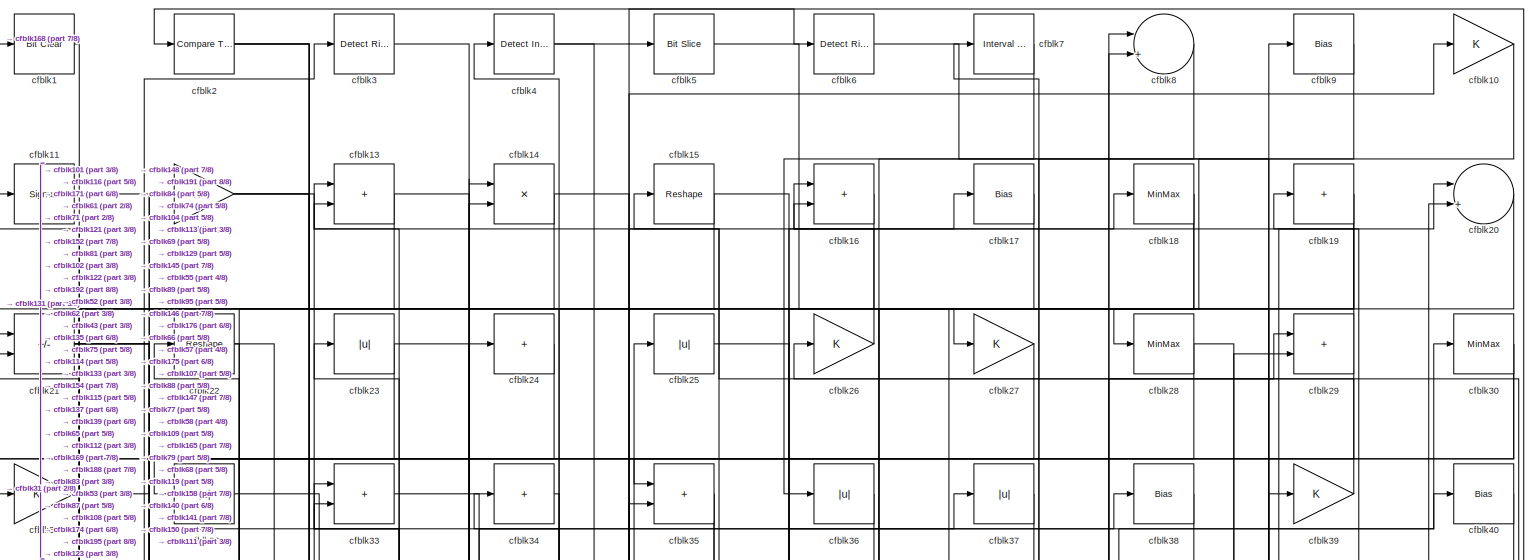
[diagram: root canvas - part 1/8, full width, top band]
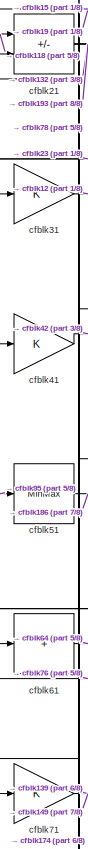
[diagram: root canvas - part 2/8, top left region]
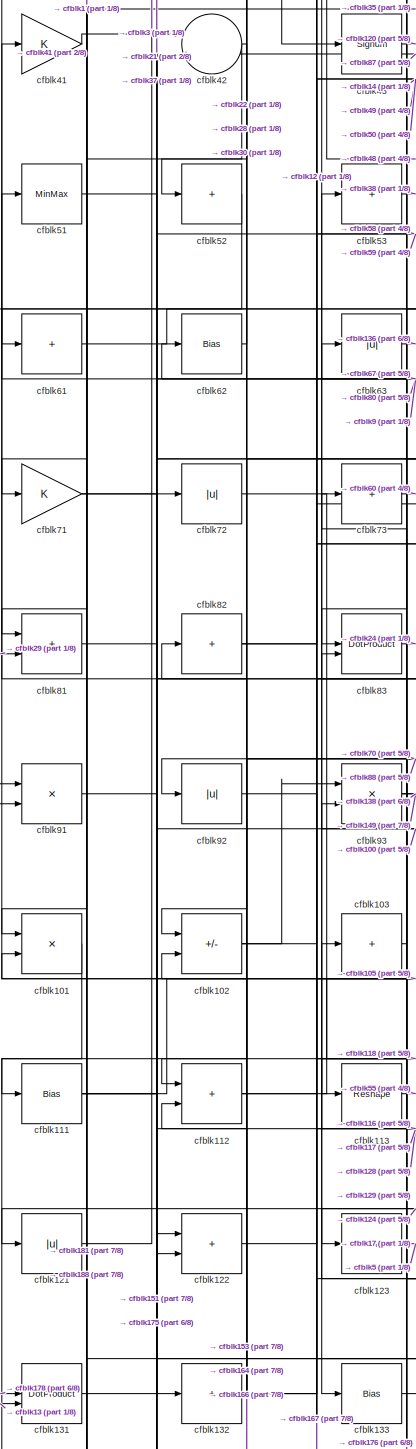
[diagram: root canvas - part 3/8, middle left region]
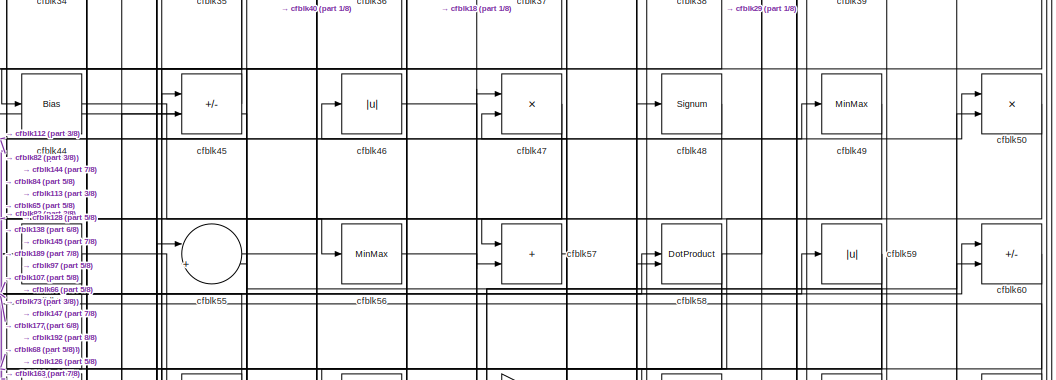
[diagram: root canvas - part 4/8, top center region]
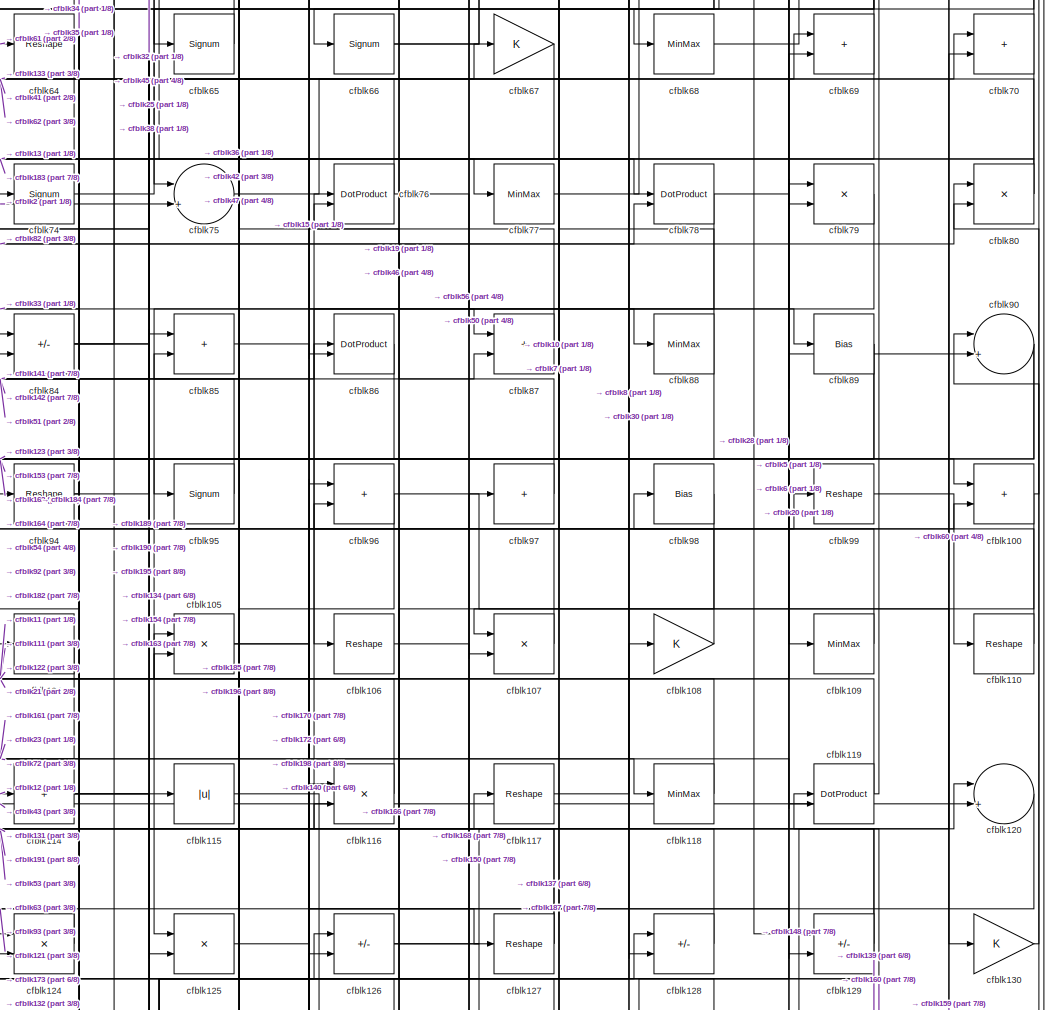
[diagram: root canvas - part 5/8, central region]
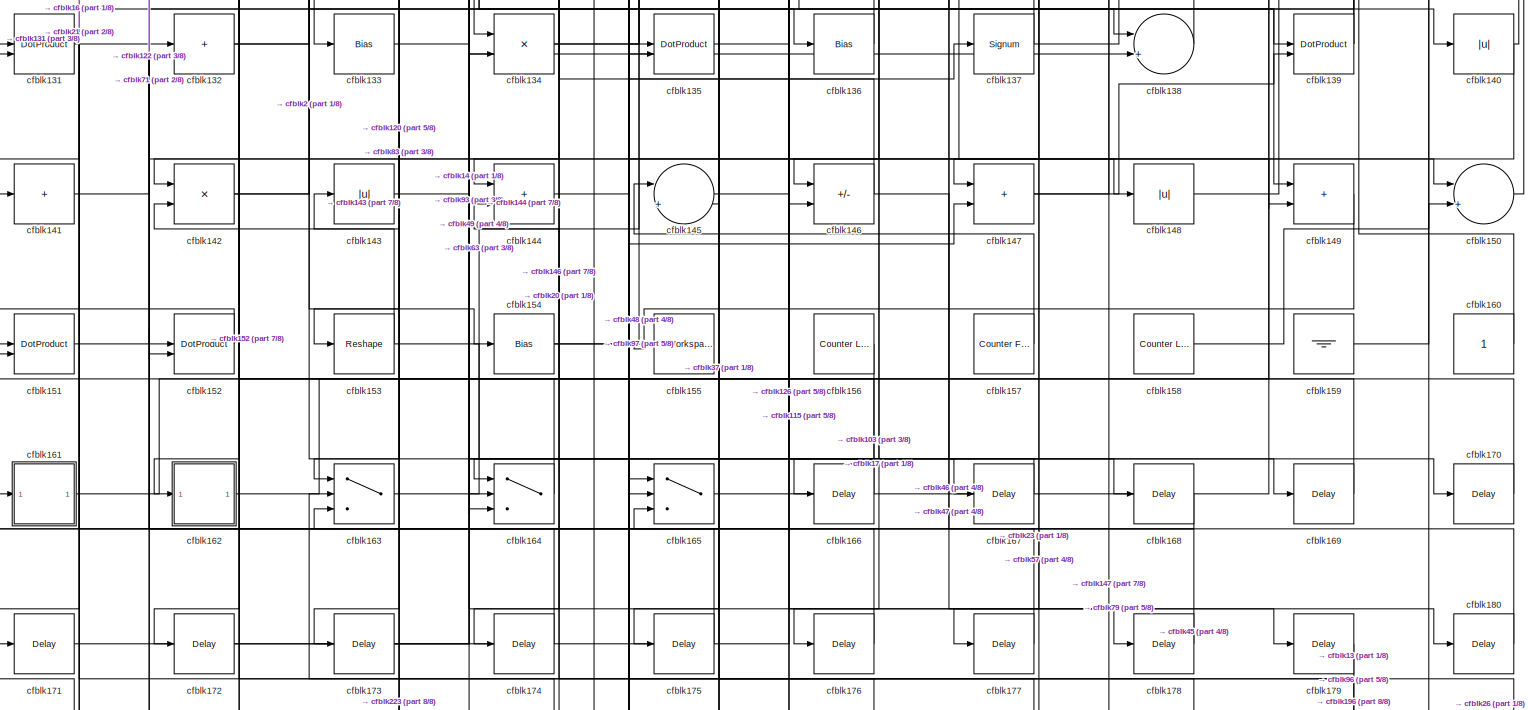
[diagram: root canvas - part 6/8, full width, bottom band]
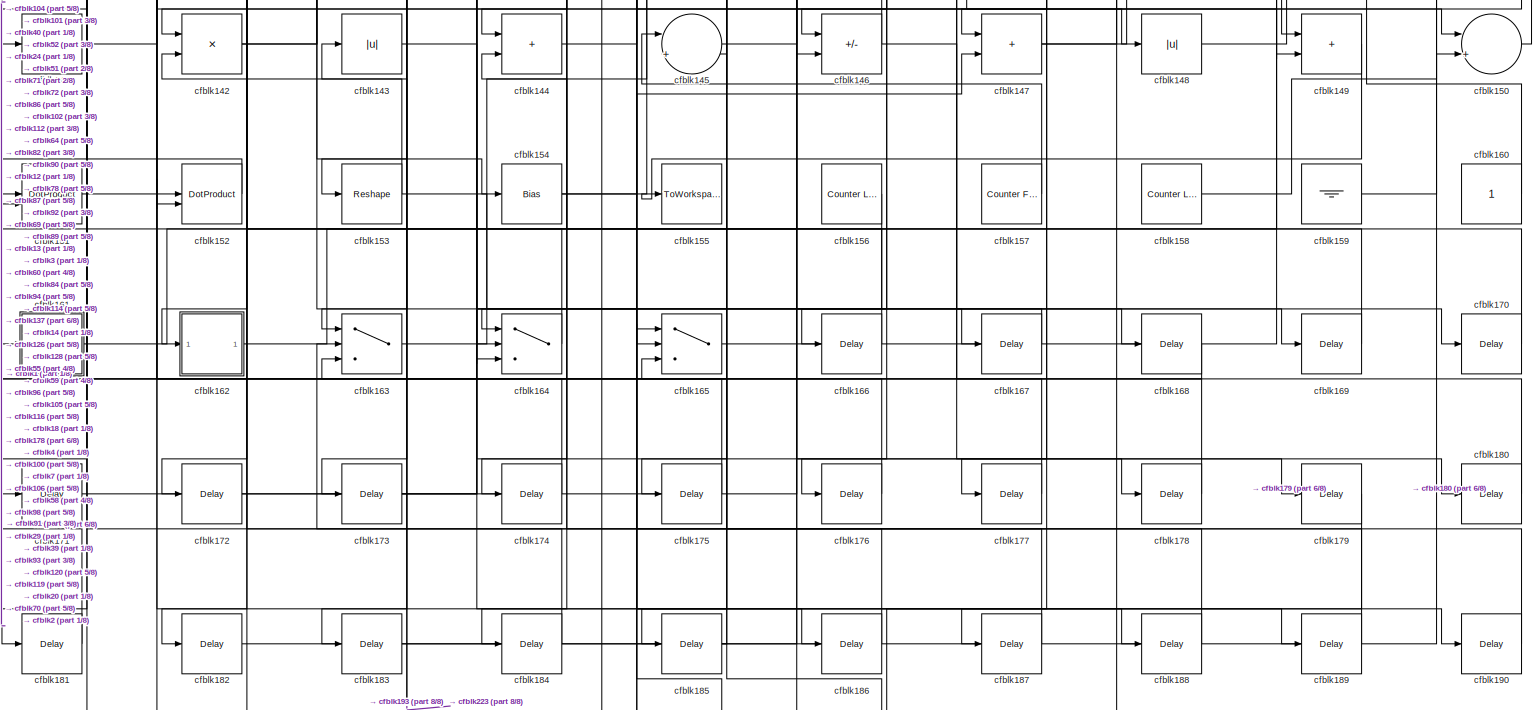
[diagram: root canvas - part 7/8, full width, bottom band]
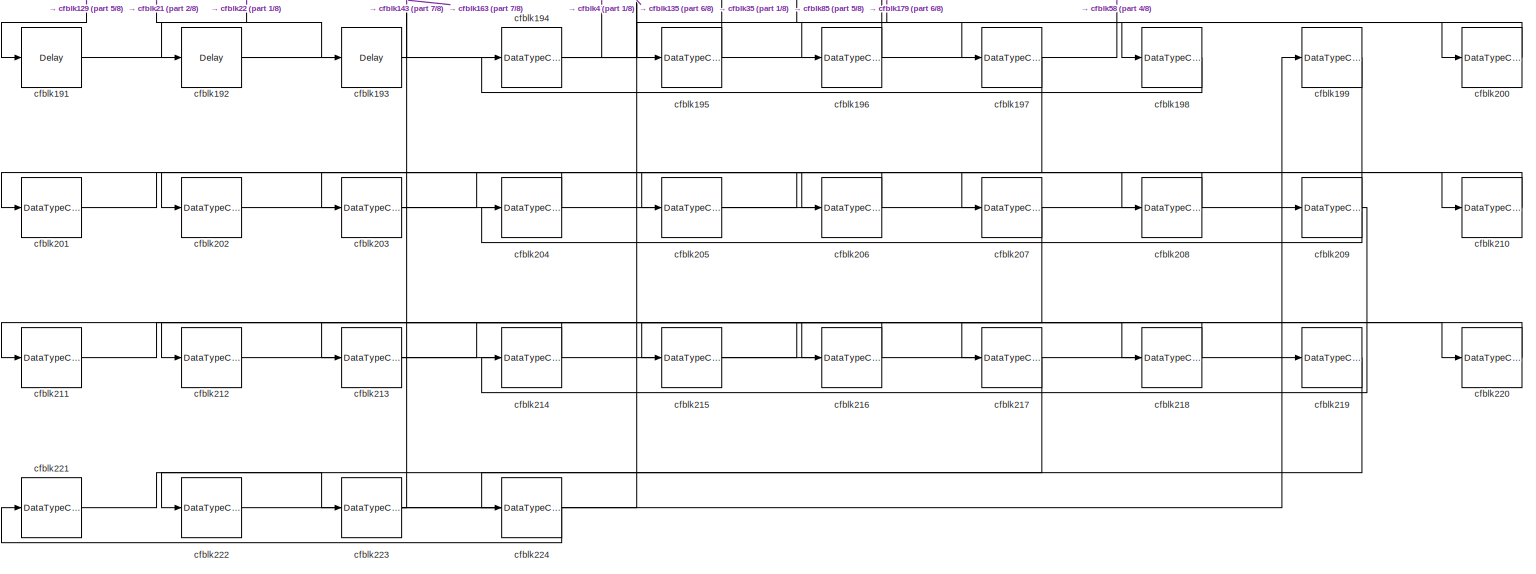
[diagram: root canvas - part 8/8, full width, bottom band]
MODEL slx_85a308b0b2df
KIND model
CONFIG AbsTol = auto
CONFIG EnableMultiTasking = off
CONFIG FixedStep = auto
CONFIG MaxStep = auto
CONFIG MinStep = auto
CONFIG RelTol = 1e-3
CONFIG SampleTimeConstraint = Unconstrained
CONFIG SolverName = VariableStepAuto
CONFIG StartTime = 0.0
CONFIG StopTime = 10.0
BLOCK [Reference] cfblk1  REF=simulink/Logic and Bit
Operations/Bit Clear
  LibrarySourceBlock = hdlsllib/Logic and Bit\nOperations/Bit Clear
  SourceBlock = simulink/Logic and Bit\nOperations/Bit Clear
  SourceType = Bit Clear
BLOCK [Gain] cfblk10
BLOCK [Sum] cfblk100
  IconShape = rectangular
BLOCK [Product] cfblk101
  Inputs = */
  RndMeth = Zero
  SaturateOnIntegerOverflow = on
BLOCK [Sum] cfblk102
  IconShape = rectangular
  Inputs = +-
BLOCK [Sum] cfblk103
  IconShape = rectangular
  Inputs = +
BLOCK [Sum] cfblk104
  IconShape = rectangular
  Inputs = +
BLOCK [Product] cfblk105
  Inputs = */
  RndMeth = Zero
  SaturateOnIntegerOverflow = on
BLOCK [Reshape] cfblk106
BLOCK [Product] cfblk107
  Inputs = */
  RndMeth = Zero
  SaturateOnIntegerOverflow = on
BLOCK [Gain] cfblk108
BLOCK [MinMax] cfblk109
BLOCK [Signum] cfblk11
BLOCK [Reshape] cfblk110
BLOCK [Bias] cfblk111
  Bias = 0.0
  SaturateOnIntegerOverflow = off
BLOCK [Sum] cfblk112
  IconShape = rectangular
BLOCK [Reshape] cfblk113
BLOCK [Sum] cfblk114
  IconShape = rectangular
  Inputs = +
BLOCK [Abs] cfblk115
  SaturateOnIntegerOverflow = off
BLOCK [Product] cfblk116
  Inputs = */
  RndMeth = Zero
  SaturateOnIntegerOverflow = on
BLOCK [Reshape] cfblk117
BLOCK [MinMax] cfblk118
BLOCK [DotProduct] cfblk119
  OutDataTypeStr = Inherit: Inherit via internal rule
BLOCK [Gain] cfblk12
BLOCK [Sum] cfblk120
  Inputs = |++
BLOCK [Abs] cfblk121
  SaturateOnIntegerOverflow = off
BLOCK [Sum] cfblk122
  IconShape = rectangular
BLOCK [Reshape] cfblk123
BLOCK [Product] cfblk124
  Inputs = */
  RndMeth = Zero
  SaturateOnIntegerOverflow = on
BLOCK [Product] cfblk125
  Inputs = */
  RndMeth = Zero
  SaturateOnIntegerOverflow = on
BLOCK [Sum] cfblk126
  IconShape = rectangular
  Inputs = +-
BLOCK [Reshape] cfblk127
BLOCK [Sum] cfblk128
  IconShape = rectangular
  Inputs = +-
BLOCK [Sum] cfblk129
  IconShape = rectangular
  Inputs = +-
BLOCK [Sum] cfblk13
  IconShape = rectangular
BLOCK [Gain] cfblk130
BLOCK [DotProduct] cfblk131
  OutDataTypeStr = Inherit: Inherit via internal rule
BLOCK [Sum] cfblk132
  IconShape = rectangular
  Inputs = +
BLOCK [Bias] cfblk133
  Bias = 0.0
  SaturateOnIntegerOverflow = off
BLOCK [Product] cfblk134
  Inputs = */
  RndMeth = Zero
  SaturateOnIntegerOverflow = on
BLOCK [DotProduct] cfblk135
  OutDataTypeStr = Inherit: Inherit via internal rule
BLOCK [Bias] cfblk136
  Bias = 0.0
  SaturateOnIntegerOverflow = off
BLOCK [Signum] cfblk137
BLOCK [Sum] cfblk138
  Inputs = |++
BLOCK [DotProduct] cfblk139
  OutDataTypeStr = Inherit: Inherit via internal rule
BLOCK [Product] cfblk14
  Inputs = */
  RndMeth = Zero
  SaturateOnIntegerOverflow = on
BLOCK [Abs] cfblk140
  SaturateOnIntegerOverflow = off
BLOCK [Sum] cfblk141
  IconShape = rectangular
  Inputs = +
BLOCK [Product] cfblk142
  Inputs = */
  RndMeth = Zero
  SaturateOnIntegerOverflow = on
BLOCK [Abs] cfblk143
  SaturateOnIntegerOverflow = off
BLOCK [Sum] cfblk144
  IconShape = rectangular
BLOCK [Sum] cfblk145
  Inputs = |++
BLOCK [Sum] cfblk146
  IconShape = rectangular
  Inputs = +-
BLOCK [Sum] cfblk147
  IconShape = rectangular
BLOCK [Abs] cfblk148
  SaturateOnIntegerOverflow = off
BLOCK [Sum] cfblk149
  IconShape = rectangular
BLOCK [Reshape] cfblk15
BLOCK [Sum] cfblk150
  Inputs = |++
BLOCK [DotProduct] cfblk151
  OutDataTypeStr = Inherit: Inherit via internal rule
BLOCK [DotProduct] cfblk152
  OutDataTypeStr = Inherit: Inherit via internal rule
BLOCK [Reshape] cfblk153
BLOCK [Bias] cfblk154
  Bias = 0.0
  SaturateOnIntegerOverflow = off
BLOCK [ToWorkspace] cfblk155
  MaxDataPoints = inf
  SampleTime = -1
  SaveFormat = Timeseries
  VariableName = simout
BLOCK [Reference] cfblk156  REF=hdlsllib/Sources/Counter
Limited
  SourceBlock = hdlsllib/Sources/Counter\nLimited
  SourceType = Counter Limited
BLOCK [Reference] cfblk157  REF=hdlsllib/Sources/Counter
Free-Running
  SourceBlock = hdlsllib/Sources/Counter\nFree-Running
  SourceType = Counter Free-Running
BLOCK [Reference] cfblk158  REF=hdlsllib/Sources/Counter
Limited
  SourceBlock = hdlsllib/Sources/Counter\nLimited
  SourceType = Counter Limited
BLOCK [Ground] cfblk159
BLOCK [Sum] cfblk16
  IconShape = rectangular
BLOCK [Constant] cfblk160
  SampleTime = -1
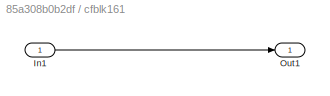
BLOCK [SubSystem] cfblk161
  LibrarySourceBlock = hdlsllib/Ports &\nSubsystems/Subsystem
BLOCK [Inport] cfblk161/In1
BLOCK [Outport] cfblk161/Out1
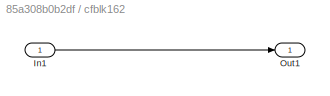
BLOCK [SubSystem] cfblk162
  LibrarySourceBlock = hdlsllib/Ports &\nSubsystems/Subsystem
BLOCK [Inport] cfblk162/In1
BLOCK [Outport] cfblk162/Out1
BLOCK [Switch] cfblk163
  InputSameDT = off
  SaturateOnIntegerOverflow = off
BLOCK [Switch] cfblk164
  InputSameDT = off
  SaturateOnIntegerOverflow = off
BLOCK [Switch] cfblk165
  InputSameDT = off
  SaturateOnIntegerOverflow = off
BLOCK [Delay] cfblk166
  InputPortMap = u0
  SampleTime = 1
BLOCK [Delay] cfblk167
  InputPortMap = u0
  SampleTime = 1
BLOCK [Delay] cfblk168
  InputPortMap = u0
  SampleTime = 1
BLOCK [Delay] cfblk169
  InputPortMap = u0
  SampleTime = 1
BLOCK [Bias] cfblk17
  Bias = 0.0
  SaturateOnIntegerOverflow = off
BLOCK [Delay] cfblk170
  InputPortMap = u0
  SampleTime = 1
BLOCK [Delay] cfblk171
  InputPortMap = u0
  SampleTime = 1
BLOCK [Delay] cfblk172
  InputPortMap = u0
  SampleTime = 1
BLOCK [Delay] cfblk173
  InputPortMap = u0
  SampleTime = 1
BLOCK [Delay] cfblk174
  InputPortMap = u0
  SampleTime = 1
BLOCK [Delay] cfblk175
  InputPortMap = u0
  SampleTime = 1
BLOCK [Delay] cfblk176
  InputPortMap = u0
  SampleTime = 1
BLOCK [Delay] cfblk177
  InputPortMap = u0
  SampleTime = 1
BLOCK [Delay] cfblk178
  InputPortMap = u0
  SampleTime = 1
BLOCK [Delay] cfblk179
  InputPortMap = u0
  SampleTime = 1
BLOCK [MinMax] cfblk18
BLOCK [Delay] cfblk180
  InputPortMap = u0
  SampleTime = 1
BLOCK [Delay] cfblk181
  InputPortMap = u0
  SampleTime = 1
BLOCK [Delay] cfblk182
  InputPortMap = u0
  SampleTime = 1
BLOCK [Delay] cfblk183
  InputPortMap = u0
  SampleTime = 1
BLOCK [Delay] cfblk184
  InputPortMap = u0
  SampleTime = 1
BLOCK [Delay] cfblk185
  InputPortMap = u0
  SampleTime = 1
BLOCK [Delay] cfblk186
  InputPortMap = u0
  SampleTime = 1
BLOCK [Delay] cfblk187
  InputPortMap = u0
  SampleTime = 1
BLOCK [Delay] cfblk188
  InputPortMap = u0
  SampleTime = 1
BLOCK [Delay] cfblk189
  InputPortMap = u0
  SampleTime = 1
BLOCK [Sum] cfblk19
  IconShape = rectangular
  Inputs = +
BLOCK [Delay] cfblk190
  InputPortMap = u0
  SampleTime = 1
BLOCK [Delay] cfblk191
  InputPortMap = u0
  SampleTime = 1
BLOCK [Delay] cfblk192
  InputPortMap = u0
  SampleTime = 1
BLOCK [Delay] cfblk193
  InputPortMap = u0
  SampleTime = 1
BLOCK [DataTypeConversion] cfblk194
  RndMeth = Floor
  SaturateOnIntegerOverflow = off
BLOCK [DataTypeConversion] cfblk195
  OutDataTypeStr = uint8
  RndMeth = Floor
  SaturateOnIntegerOverflow = off
BLOCK [DataTypeConversion] cfblk196
  OutDataTypeStr = uint8
  RndMeth = Floor
  SaturateOnIntegerOverflow = off
BLOCK [DataTypeConversion] cfblk197
  RndMeth = Floor
  SaturateOnIntegerOverflow = off
BLOCK [DataTypeConversion] cfblk198
  OutDataTypeStr = uint8
  RndMeth = Floor
  SaturateOnIntegerOverflow = off
BLOCK [DataTypeConversion] cfblk199
  RndMeth = Floor
  SaturateOnIntegerOverflow = off
BLOCK [Reference] cfblk2  REF=hdlsllib/Logic and Bit
Operations/Compare
To Constant
  SourceBlock = hdlsllib/Logic and Bit\nOperations/Compare\nTo Constant
  SourceType = Compare To Constant
BLOCK [Sum] cfblk20
  Inputs = |++
BLOCK [DataTypeConversion] cfblk200
  OutDataTypeStr = uint8
  RndMeth = Floor
  SaturateOnIntegerOverflow = off
BLOCK [DataTypeConversion] cfblk201
  RndMeth = Floor
  SaturateOnIntegerOverflow = off
BLOCK [DataTypeConversion] cfblk202
  OutDataTypeStr = uint8
  RndMeth = Floor
  SaturateOnIntegerOverflow = off
BLOCK [DataTypeConversion] cfblk203
  RndMeth = Floor
  SaturateOnIntegerOverflow = off
BLOCK [DataTypeConversion] cfblk204
  OutDataTypeStr = uint8
  RndMeth = Floor
  SaturateOnIntegerOverflow = off
BLOCK [DataTypeConversion] cfblk205
  RndMeth = Floor
  SaturateOnIntegerOverflow = off
BLOCK [DataTypeConversion] cfblk206
  OutDataTypeStr = uint8
  RndMeth = Floor
  SaturateOnIntegerOverflow = off
BLOCK [DataTypeConversion] cfblk207
  RndMeth = Floor
  SaturateOnIntegerOverflow = off
BLOCK [DataTypeConversion] cfblk208
  OutDataTypeStr = uint8
  RndMeth = Floor
  SaturateOnIntegerOverflow = off
BLOCK [DataTypeConversion] cfblk209
  RndMeth = Floor
  SaturateOnIntegerOverflow = off
BLOCK [Sum] cfblk21
  IconShape = rectangular
  Inputs = +-
BLOCK [DataTypeConversion] cfblk210
  OutDataTypeStr = uint8
  RndMeth = Floor
  SaturateOnIntegerOverflow = off
BLOCK [DataTypeConversion] cfblk211
  RndMeth = Floor
  SaturateOnIntegerOverflow = off
BLOCK [DataTypeConversion] cfblk212
  OutDataTypeStr = uint8
  RndMeth = Floor
  SaturateOnIntegerOverflow = off
BLOCK [DataTypeConversion] cfblk213
  RndMeth = Floor
  SaturateOnIntegerOverflow = off
BLOCK [DataTypeConversion] cfblk214
  OutDataTypeStr = uint8
  RndMeth = Floor
  SaturateOnIntegerOverflow = off
BLOCK [DataTypeConversion] cfblk215
  RndMeth = Floor
  SaturateOnIntegerOverflow = off
BLOCK [DataTypeConversion] cfblk216
  OutDataTypeStr = uint8
  RndMeth = Floor
  SaturateOnIntegerOverflow = off
BLOCK [DataTypeConversion] cfblk217
  RndMeth = Floor
  SaturateOnIntegerOverflow = off
BLOCK [DataTypeConversion] cfblk218
  OutDataTypeStr = uint8
  RndMeth = Floor
  SaturateOnIntegerOverflow = off
BLOCK [DataTypeConversion] cfblk219
  RndMeth = Floor
  SaturateOnIntegerOverflow = off
BLOCK [Reshape] cfblk22
BLOCK [DataTypeConversion] cfblk220
  OutDataTypeStr = uint8
  RndMeth = Floor
  SaturateOnIntegerOverflow = off
BLOCK [DataTypeConversion] cfblk221
  RndMeth = Floor
  SaturateOnIntegerOverflow = off
BLOCK [DataTypeConversion] cfblk222
  OutDataTypeStr = uint8
  RndMeth = Floor
  SaturateOnIntegerOverflow = off
BLOCK [DataTypeConversion] cfblk223
  RndMeth = Floor
  SaturateOnIntegerOverflow = off
BLOCK [DataTypeConversion] cfblk224
  OutDataTypeStr = uint8
  RndMeth = Floor
  SaturateOnIntegerOverflow = off
BLOCK [Abs] cfblk23
  SaturateOnIntegerOverflow = off
BLOCK [Sum] cfblk24
  IconShape = rectangular
  Inputs = +
BLOCK [Abs] cfblk25
  SaturateOnIntegerOverflow = off
BLOCK [Gain] cfblk26
BLOCK [Gain] cfblk27
BLOCK [MinMax] cfblk28
BLOCK [Sum] cfblk29
  IconShape = rectangular
BLOCK [Reference] cfblk3  REF=hdlsllib/Logic and Bit
Operations/Detect Rise
Nonnegative
  SourceBlock = hdlsllib/Logic and Bit\nOperations/Detect Rise\nNonnegative
  SourceType = Detect Rise Nonnegative
BLOCK [MinMax] cfblk30
BLOCK [Gain] cfblk31
BLOCK [Abs] cfblk32
  SaturateOnIntegerOverflow = off
BLOCK [Sum] cfblk33
  IconShape = rectangular
BLOCK [Sum] cfblk34
  IconShape = rectangular
  Inputs = +
BLOCK [Sum] cfblk35
  IconShape = rectangular
BLOCK [Abs] cfblk36
  SaturateOnIntegerOverflow = off
BLOCK [Abs] cfblk37
  SaturateOnIntegerOverflow = off
BLOCK [Bias] cfblk38
  Bias = 0.0
  SaturateOnIntegerOverflow = off
BLOCK [Gain] cfblk39
BLOCK [Reference] cfblk4  REF=simulink/Logic and Bit
Operations/Detect
Increase
  LibrarySourceBlock = hdlsllib/Logic and Bit\nOperations/Detect\nIncrease
  SourceBlock = simulink/Logic and Bit\nOperations/Detect\nIncrease
  SourceType = Detect Increase
BLOCK [Bias] cfblk40
  Bias = 0.0
  SaturateOnIntegerOverflow = off
BLOCK [Gain] cfblk41
BLOCK [Sum] cfblk42
  Inputs = |++
BLOCK [Signum] cfblk43
BLOCK [Bias] cfblk44
  Bias = 0.0
  SaturateOnIntegerOverflow = off
BLOCK [Sum] cfblk45
  IconShape = rectangular
  Inputs = +-
BLOCK [Abs] cfblk46
  SaturateOnIntegerOverflow = off
BLOCK [Product] cfblk47
  Inputs = */
  RndMeth = Zero
  SaturateOnIntegerOverflow = on
BLOCK [Signum] cfblk48
BLOCK [MinMax] cfblk49
BLOCK [Reference] cfblk5  REF=hdlsllib/Logic and Bit
Operations/Bit Slice
  SourceBlock = hdlsllib/Logic and Bit\nOperations/Bit Slice
  SourceType = Bit Slice
BLOCK [Product] cfblk50
  Inputs = */
  RndMeth = Zero
  SaturateOnIntegerOverflow = on
BLOCK [MinMax] cfblk51
BLOCK [Sum] cfblk52
  IconShape = rectangular
  Inputs = +
BLOCK [Sum] cfblk53
  IconShape = rectangular
  Inputs = +
BLOCK [Sum] cfblk54
  IconShape = rectangular
  Inputs = +
BLOCK [Sum] cfblk55
  Inputs = |++
BLOCK [MinMax] cfblk56
BLOCK [Sum] cfblk57
  IconShape = rectangular
BLOCK [DotProduct] cfblk58
  OutDataTypeStr = Inherit: Inherit via internal rule
BLOCK [Abs] cfblk59
  SaturateOnIntegerOverflow = off
BLOCK [Reference] cfblk6  REF=hdlsllib/Logic and Bit
Operations/Detect Rise
Nonnegative
  SourceBlock = hdlsllib/Logic and Bit\nOperations/Detect Rise\nNonnegative
  SourceType = Detect Rise Nonnegative
BLOCK [Sum] cfblk60
  IconShape = rectangular
  Inputs = +-
BLOCK [Sum] cfblk61
  IconShape = rectangular
  Inputs = +
BLOCK [Bias] cfblk62
  Bias = 0.0
  SaturateOnIntegerOverflow = off
BLOCK [Abs] cfblk63
  SaturateOnIntegerOverflow = off
BLOCK [Reshape] cfblk64
BLOCK [Signum] cfblk65
BLOCK [Signum] cfblk66
BLOCK [Gain] cfblk67
BLOCK [MinMax] cfblk68
BLOCK [Sum] cfblk69
  IconShape = rectangular
BLOCK [Reference] cfblk7  REF=hdlsllib/Logic and Bit
Operations/Interval Test
  SourceBlock = hdlsllib/Logic and Bit\nOperations/Interval Test
  SourceType = Interval Test
BLOCK [Sum] cfblk70
  IconShape = rectangular
BLOCK [Gain] cfblk71
BLOCK [Abs] cfblk72
  SaturateOnIntegerOverflow = off
BLOCK [Sum] cfblk73
  IconShape = rectangular
  Inputs = +
BLOCK [Signum] cfblk74
BLOCK [Sum] cfblk75
  Inputs = |++
BLOCK [DotProduct] cfblk76
  OutDataTypeStr = Inherit: Inherit via internal rule
BLOCK [MinMax] cfblk77
BLOCK [DotProduct] cfblk78
  OutDataTypeStr = Inherit: Inherit via internal rule
BLOCK [Product] cfblk79
  Inputs = */
  RndMeth = Zero
  SaturateOnIntegerOverflow = on
BLOCK [Sum] cfblk8
  Inputs = |++
BLOCK [Product] cfblk80
  Inputs = */
  RndMeth = Zero
  SaturateOnIntegerOverflow = on
BLOCK [Sum] cfblk81
  IconShape = rectangular
BLOCK [Sum] cfblk82
  IconShape = rectangular
  Inputs = +
BLOCK [DotProduct] cfblk83
  OutDataTypeStr = Inherit: Inherit via internal rule
BLOCK [Sum] cfblk84
  IconShape = rectangular
  Inputs = +-
BLOCK [Sum] cfblk85
  IconShape = rectangular
BLOCK [DotProduct] cfblk86
  OutDataTypeStr = Inherit: Inherit via internal rule
BLOCK [Sum] cfblk87
  IconShape = rectangular
BLOCK [MinMax] cfblk88
BLOCK [Bias] cfblk89
  Bias = 0.0
  SaturateOnIntegerOverflow = off
BLOCK [Bias] cfblk9
  Bias = 0.0
  SaturateOnIntegerOverflow = off
BLOCK [Sum] cfblk90
  Inputs = |++
BLOCK [Product] cfblk91
  Inputs = */
  RndMeth = Zero
  SaturateOnIntegerOverflow = on
BLOCK [Abs] cfblk92
  SaturateOnIntegerOverflow = off
BLOCK [Product] cfblk93
  Inputs = */
  RndMeth = Zero
  SaturateOnIntegerOverflow = on
BLOCK [Reshape] cfblk94
BLOCK [Signum] cfblk95
BLOCK [Sum] cfblk96
  IconShape = rectangular
BLOCK [Sum] cfblk97
  IconShape = rectangular
  Inputs = +
BLOCK [Bias] cfblk98
  Bias = 0.0
  SaturateOnIntegerOverflow = off
BLOCK [Reshape] cfblk99
NET cfblk100:1 -> cfblk166:1, cfblk80:2
LINE cfblk101:1 -> cfblk111:1
NET cfblk102:1 -> cfblk58:1, cfblk93:1
LINE cfblk103:1 -> cfblk73:1
LINE cfblk104:1 -> cfblk161:1
NET cfblk105:1 -> cfblk127:1, cfblk170:1
LINE cfblk106:1 -> cfblk168:1
LINE cfblk107:1 -> cfblk33:1
LINE cfblk108:1 -> cfblk34:1
LINE cfblk109:1 -> cfblk47:2
LINE cfblk10:1 -> cfblk107:1
LINE cfblk110:1 -> cfblk98:1
NET cfblk111:1 -> cfblk100:2, cfblk67:1, cfblk9:1
NET cfblk112:1 -> cfblk14:2, cfblk50:1
LINE cfblk113:1 -> cfblk55:1
NET cfblk114:1 -> cfblk125:2, cfblk189:1, cfblk190:1
LINE cfblk115:1 -> cfblk140:1
LINE cfblk116:1 -> cfblk11:1
LINE cfblk117:1 -> cfblk108:1
LINE cfblk118:1 -> cfblk21:1
NET cfblk119:1 -> cfblk105:1, cfblk19:1
LINE cfblk11:1 -> cfblk77:1
LINE cfblk120:1 -> cfblk173:1
LINE cfblk121:1 -> cfblk3:1
LINE cfblk122:1 -> cfblk105:2
NET cfblk123:1 -> cfblk17:1, cfblk5:1
LINE cfblk124:1 -> cfblk121:1
LINE cfblk125:1 -> cfblk99:1
NET cfblk126:1 -> cfblk150:1, cfblk60:2
NET cfblk127:1 -> cfblk76:1, cfblk76:2
LINE cfblk128:1 -> cfblk63:1
NET cfblk129:1 -> cfblk191:1, cfblk53:1, cfblk93:2
NET cfblk12:1 -> cfblk114:1, cfblk133:1, cfblk154:1
LINE cfblk130:1 -> cfblk90:1
LINE cfblk131:1 -> cfblk116:2
NET cfblk132:1 -> cfblk117:1, cfblk124:1
LINE cfblk133:1 -> cfblk70:1
NET cfblk134:1 -> cfblk48:1, cfblk97:1
LINE cfblk135:1 -> cfblk180:1
LINE cfblk136:1 -> cfblk103:1
NET cfblk137:1 -> cfblk23:1, cfblk79:1
LINE cfblk138:1 -> cfblk45:1
NET cfblk139:1 -> cfblk13:2, cfblk96:2
NET cfblk13:1 -> cfblk131:2, cfblk169:1
NET cfblk140:1 -> cfblk172:1, cfblk26:1
LINE cfblk141:1 -> cfblk86:1
NET cfblk142:1 -> cfblk78:2, cfblk87:2
LINE cfblk143:1 -> cfblk179:1
LINE cfblk144:1 -> cfblk137:1
LINE cfblk145:1 -> cfblk18:1
NET cfblk146:1 -> cfblk178:1, cfblk4:1
NET cfblk147:1 -> cfblk139:2, cfblk29:1
LINE cfblk148:1 -> cfblk120:1
LINE cfblk149:1 -> cfblk155:1
NET cfblk14:1 -> cfblk148:1, cfblk32:1
LINE cfblk150:1 -> cfblk2:1
LINE cfblk151:1 -> cfblk72:1
LINE cfblk152:1 -> cfblk151:1
NET cfblk153:1 -> cfblk112:2, cfblk165:2
NET cfblk154:1 -> cfblk128:1, cfblk147:2
LINE cfblk156:1 -> cfblk164:1
LINE cfblk157:1 -> cfblk145:1
LINE cfblk158:1 -> cfblk20:2
LINE cfblk159:1 -> cfblk70:2
NET cfblk15:1 -> cfblk129:2, cfblk31:1
LINE cfblk160:1 -> cfblk119:1
LINE cfblk161/In1:1 -> cfblk161/Out1:1
LINE cfblk161:1 -> cfblk69:2
LINE cfblk162/In1:1 -> cfblk162/Out1:1
LINE cfblk162:1 -> cfblk116:1
LINE cfblk163:1 -> cfblk126:1
LINE cfblk164:1 -> cfblk82:1
LINE cfblk165:1 -> cfblk39:1
LINE cfblk166:1 -> cfblk102:2
LINE cfblk167:1 -> cfblk164:2
LINE cfblk168:1 -> cfblk1:1
LINE cfblk169:1 -> cfblk144:2
LINE cfblk16:1 -> cfblk171:1
LINE cfblk170:1 -> cfblk151:2
LINE cfblk171:1 -> cfblk14:1
LINE cfblk172:1 -> cfblk126:2
LINE cfblk173:1 -> cfblk134:2
LINE cfblk174:1 -> cfblk21:2
LINE cfblk175:1 -> cfblk122:1
LINE cfblk176:1 -> cfblk83:2
LINE cfblk177:1 -> cfblk47:1
LINE cfblk178:1 -> cfblk131:1
LINE cfblk179:1 -> cfblk196:1
LINE cfblk17:1 -> cfblk176:1
LINE cfblk180:1 -> cfblk152:1
LINE cfblk181:1 -> cfblk91:1
LINE cfblk182:1 -> cfblk150:2
LINE cfblk183:1 -> cfblk96:1
LINE cfblk184:1 -> cfblk163:2
LINE cfblk185:1 -> cfblk165:3
LINE cfblk186:1 -> cfblk165:1
LINE cfblk187:1 -> cfblk142:2
LINE cfblk188:1 -> cfblk101:2
LINE cfblk189:1 -> cfblk55:2
NET cfblk18:1 -> cfblk146:2, cfblk57:2
LINE cfblk190:1 -> cfblk84:2
LINE cfblk191:1 -> cfblk35:2
LINE cfblk192:1 -> cfblk58:2
LINE cfblk193:1 -> cfblk163:3
LINE cfblk194:1 -> cfblk200:1
LINE cfblk195:1 -> cfblk85:1
LINE cfblk196:1 -> cfblk85:2
LINE cfblk197:1 -> cfblk202:1
LINE cfblk198:1 -> cfblk194:1
LINE cfblk199:1 -> cfblk204:1
NET cfblk19:1 -> cfblk61:1, cfblk66:1
LINE cfblk1:1 -> cfblk101:1
LINE cfblk200:1 -> cfblk197:1
LINE cfblk201:1 -> cfblk206:1
LINE cfblk202:1 -> cfblk199:1
LINE cfblk203:1 -> cfblk208:1
LINE cfblk204:1 -> cfblk201:1
LINE cfblk205:1 -> cfblk210:1
LINE cfblk206:1 -> cfblk203:1
LINE cfblk207:1 -> cfblk212:1
LINE cfblk208:1 -> cfblk205:1
LINE cfblk209:1 -> cfblk214:1
LINE cfblk20:1 -> cfblk174:1
LINE cfblk210:1 -> cfblk207:1
LINE cfblk211:1 -> cfblk216:1
LINE cfblk212:1 -> cfblk209:1
LINE cfblk213:1 -> cfblk218:1
LINE cfblk214:1 -> cfblk211:1
LINE cfblk215:1 -> cfblk220:1
LINE cfblk216:1 -> cfblk213:1
LINE cfblk217:1 -> cfblk222:1
LINE cfblk218:1 -> cfblk215:1
LINE cfblk219:1 -> cfblk224:1
NET cfblk21:1 -> cfblk132:1, cfblk193:1, cfblk78:1
LINE cfblk220:1 -> cfblk217:1
LINE cfblk221:1 -> cfblk223:1
LINE cfblk222:1 -> cfblk219:1
NET cfblk223:1 -> cfblk135:1, cfblk143:1
LINE cfblk224:1 -> cfblk221:1
NET cfblk22:1 -> cfblk192:1, cfblk43:1
NET cfblk23:1 -> cfblk119:2, cfblk71:1
LINE cfblk24:1 -> cfblk152:2
LINE cfblk25:1 -> cfblk89:1
LINE cfblk26:1 -> cfblk16:1
LINE cfblk27:1 -> cfblk35:1
NET cfblk28:1 -> cfblk102:1, cfblk129:1
NET cfblk29:1 -> cfblk16:2, cfblk81:2
NET cfblk2:1 -> cfblk135:2, cfblk27:1, cfblk75:2
NET cfblk30:1 -> cfblk122:2, cfblk52:1
LINE cfblk31:1 -> cfblk12:1
LINE cfblk32:1 -> cfblk115:1
LINE cfblk33:1 -> cfblk87:1
LINE cfblk34:1 -> cfblk84:1
NET cfblk35:1 -> cfblk104:1, cfblk113:1
LINE cfblk36:1 -> cfblk95:1
LINE cfblk37:1 -> cfblk175:1
LINE cfblk38:1 -> cfblk75:1
LINE cfblk39:1 -> cfblk15:1
LINE cfblk3:1 -> cfblk188:1
LINE cfblk40:1 -> cfblk141:1
LINE cfblk41:1 -> cfblk42:1
NET cfblk42:1 -> cfblk112:1, cfblk81:1
LINE cfblk43:1 -> cfblk120:2
LINE cfblk44:1 -> cfblk56:1
LINE cfblk45:1 -> cfblk44:1
LINE cfblk46:1 -> cfblk138:1
NET cfblk47:1 -> cfblk57:1, cfblk65:1
LINE cfblk48:1 -> cfblk83:1
LINE cfblk49:1 -> cfblk134:1
NET cfblk4:1 -> cfblk195:1, cfblk6:1
LINE cfblk50:1 -> cfblk68:1
LINE cfblk51:1 -> cfblk186:1
LINE cfblk52:1 -> cfblk181:1
LINE cfblk53:1 -> cfblk38:1
NET cfblk54:1 -> cfblk124:2, cfblk128:2
LINE cfblk55:1 -> cfblk40:1
LINE cfblk56:1 -> cfblk107:2
LINE cfblk57:1 -> cfblk177:1
NET cfblk58:1 -> cfblk147:1, cfblk29:2, cfblk91:2
NET cfblk59:1 -> cfblk145:2, cfblk163:1
LINE cfblk5:1 -> cfblk109:1
LINE cfblk60:1 -> cfblk144:1
LINE cfblk61:1 -> cfblk64:1
LINE cfblk62:1 -> cfblk22:1
LINE cfblk63:1 -> cfblk136:1
LINE cfblk64:1 -> cfblk142:1
LINE cfblk65:1 -> cfblk33:2
NET cfblk66:1 -> cfblk50:2, cfblk8:2
LINE cfblk67:1 -> cfblk86:2
LINE cfblk68:1 -> cfblk20:1
NET cfblk69:1 -> cfblk13:1, cfblk183:1
LINE cfblk6:1 -> cfblk79:2
NET cfblk70:1 -> cfblk54:1, cfblk92:1
NET cfblk71:1 -> cfblk139:1, cfblk149:2
LINE cfblk72:1 -> cfblk118:1
LINE cfblk73:1 -> cfblk60:1
LINE cfblk74:1 -> cfblk25:1
LINE cfblk75:1 -> cfblk8:1
NET cfblk76:1 -> cfblk41:1, cfblk88:1
LINE cfblk77:1 -> cfblk30:1
NET cfblk78:1 -> cfblk125:1, cfblk90:2
LINE cfblk79:1 -> cfblk106:1
LINE cfblk7:1 -> cfblk146:1
NET cfblk80:1 -> cfblk62:1, cfblk74:1
LINE cfblk81:1 -> cfblk37:1
NET cfblk82:1 -> cfblk49:1, cfblk80:1
LINE cfblk83:1 -> cfblk24:1
NET cfblk84:1 -> cfblk100:1, cfblk10:1, cfblk45:2
LINE cfblk85:1 -> cfblk198:1
LINE cfblk86:1 -> cfblk164:3
LINE cfblk87:1 -> cfblk42:2
NET cfblk88:1 -> cfblk123:1, cfblk7:1
NET cfblk89:1 -> cfblk153:1, cfblk162:1
LINE cfblk8:1 -> cfblk36:1
NET cfblk90:1 -> cfblk182:1, cfblk94:1
LINE cfblk91:1 -> cfblk59:1
LINE cfblk92:1 -> cfblk167:1
NET cfblk93:1 -> cfblk138:2, cfblk149:1
NET cfblk94:1 -> cfblk184:1, cfblk69:1
LINE cfblk95:1 -> cfblk51:1
NET cfblk96:1 -> cfblk130:1, cfblk185:1
LINE cfblk97:1 -> cfblk46:1
LINE cfblk98:1 -> cfblk187:1
LINE cfblk99:1 -> cfblk110:1
LINE cfblk9:1 -> cfblk28:1
note: NET lines group one-source signal fan-out (src -> all destinations, sorted); 1:1 wires keep LINE
